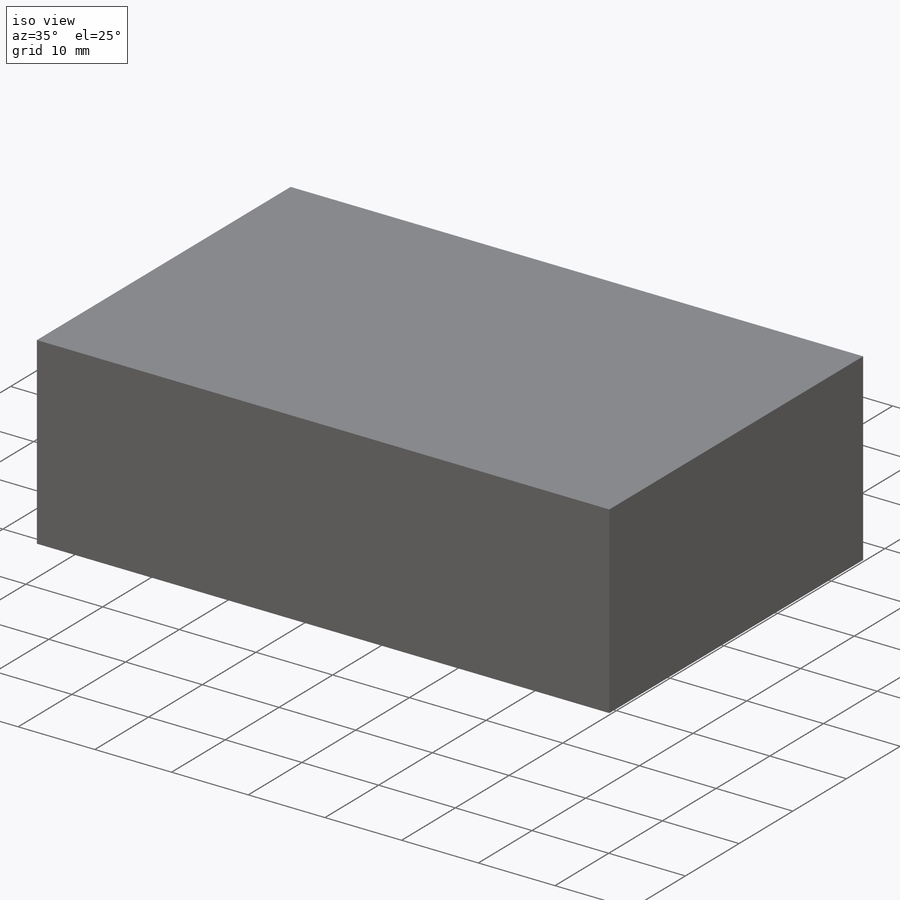
[diagram: iso view]
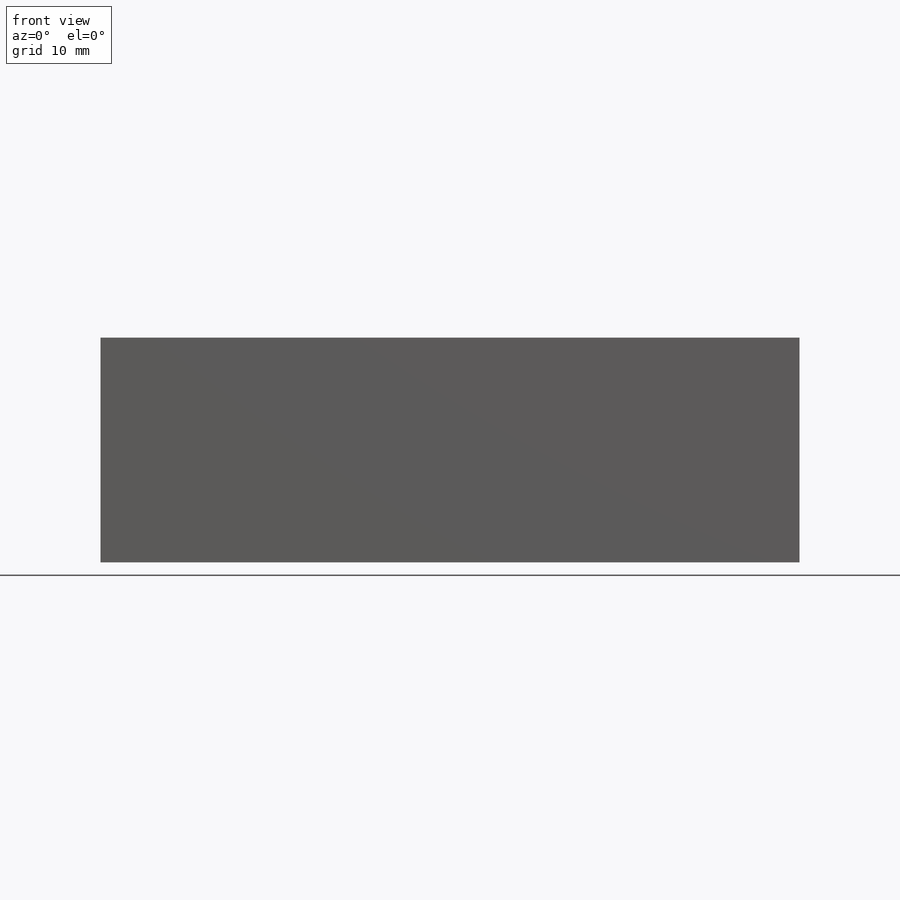
[diagram: front view]
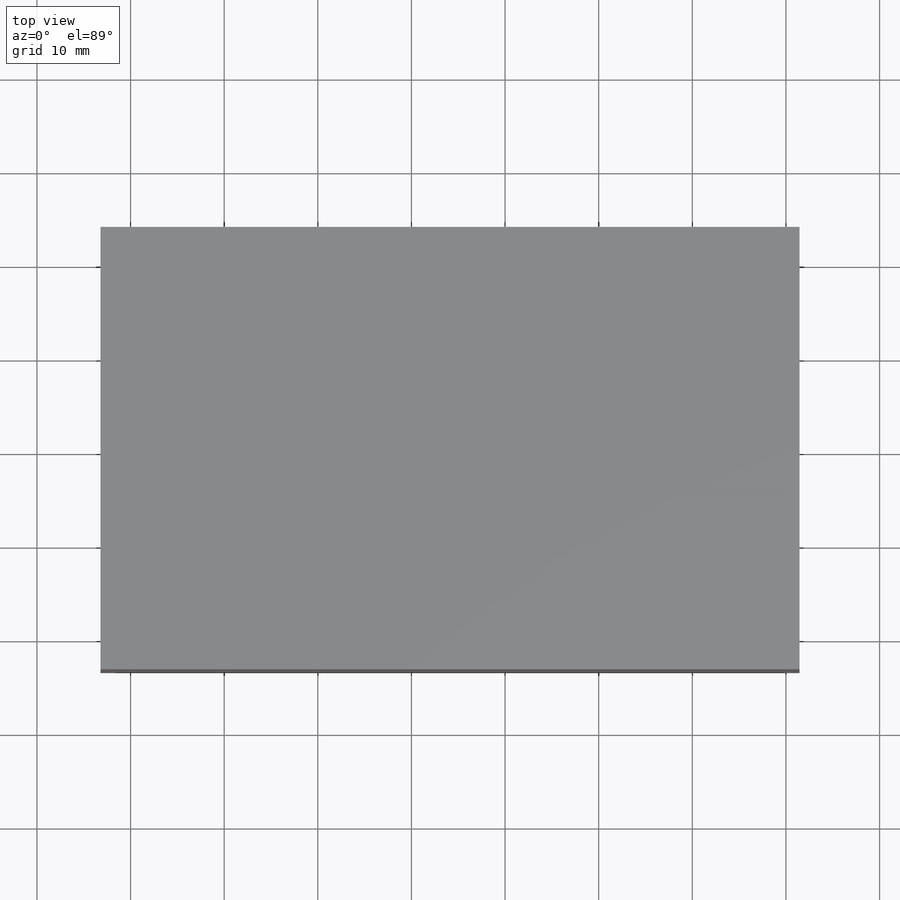
[diagram: top view]
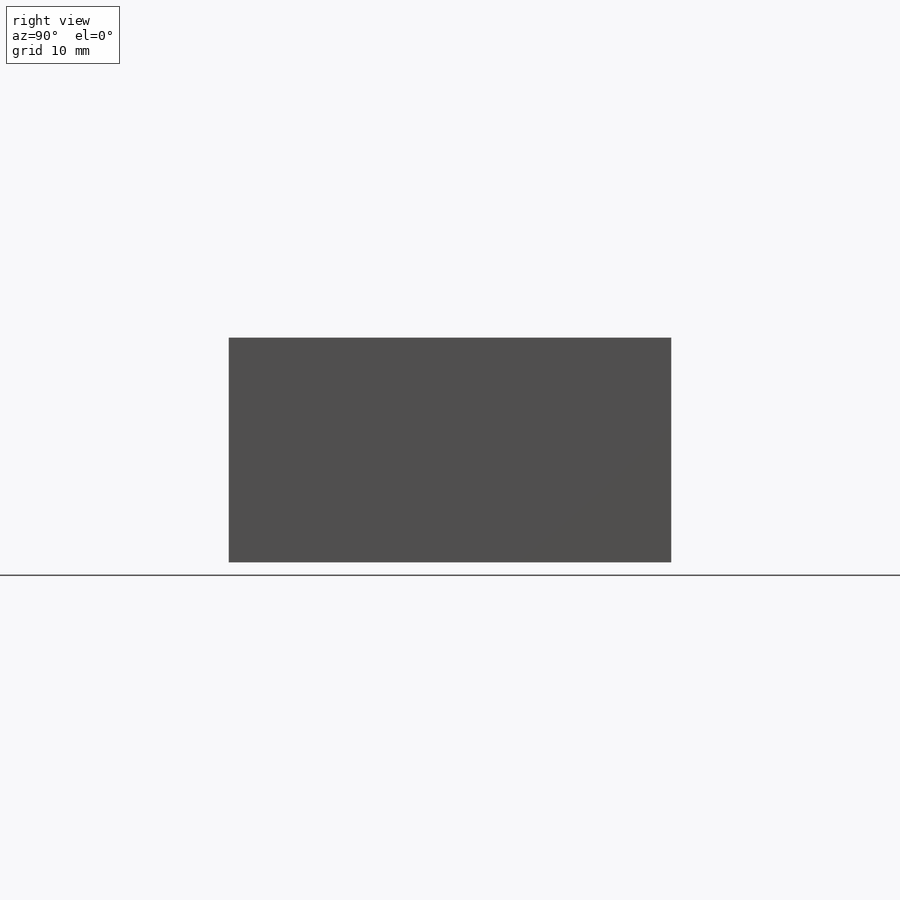
[diagram: right view]
SOLIDWORKS PART (.sldprt)
format: sldprt  version: not decoded by parser v0  size: 285,184 bytes
history: native  units: mm
features: sketch x5, extrude x4, fillet x3, material x1, cut_extrude x1 (+13 scaffold rows collapsed)
feature tree (27):
  scaffold x13  (default folders/planes/origin — collapsed)
  material  "Material <not specified>"
  sketch  "Sketch3"  dims[c1.D1=0.0mm c1.D2=~4.44313mm c2.D1=27.26mm c2.D2=0.0mm c2.D3=~4.44313mm c2.D4=~54.209784mm c3.D1=0.0mm]
  extrude  "Boss-Extrude3"  Depth=4.5mm
  fillet  "Fillet1"  Radius=4.5mm
  sketch  "Sketch1"  dims[D1=66.65mm D2=39.26mm D3=4.0mm D4=4.0mm]
  extrude  "Boss-Extrude1"  Depth=6mm
  sketch  "Sketch4"  dims[c1.D1=0.0mm c1.D2=27.26mm c2.D1=0.0mm c2.D2=0.0mm c2.D3=8.5mm]
  extrude  "Boss-Extrude4"  Depth=4mm
  fillet  "Fillet2"  Radius=4.5mm
  sketch  "Sketch5"  dims[D1=9.0mm D2=4.5mm D3=15.13mm]
  cut_extrude  "Cut-Extrude1"  [1 undecoded]
  sketch  "Sketch2"  dims[D1=4.0mm D2=4.0mm D3=4.0mm D4=4.0mm]
  extrude  "Boss-Extrude2"  Depth=24mm
  fillet  "Fillet3"  Radius=3mm
decode coverage: 12 of 13 modeling features carry decoded parameters
note: ~ marks probable driven/reference dimensions
note: 1 parameter value undecoded
note: suppression state not decoded; provenance and decode notes live in map.json
